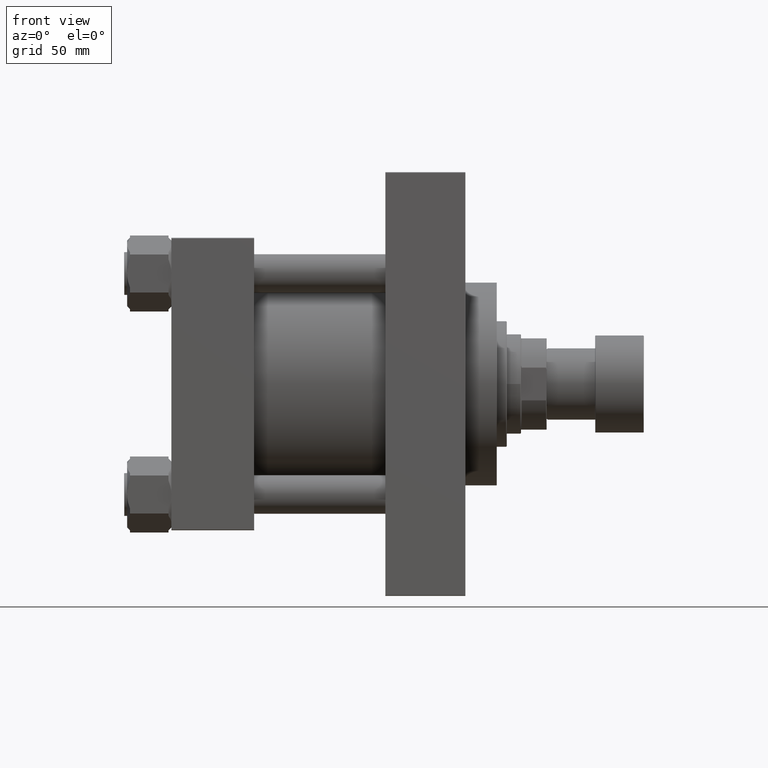
[diagram: clean part render]
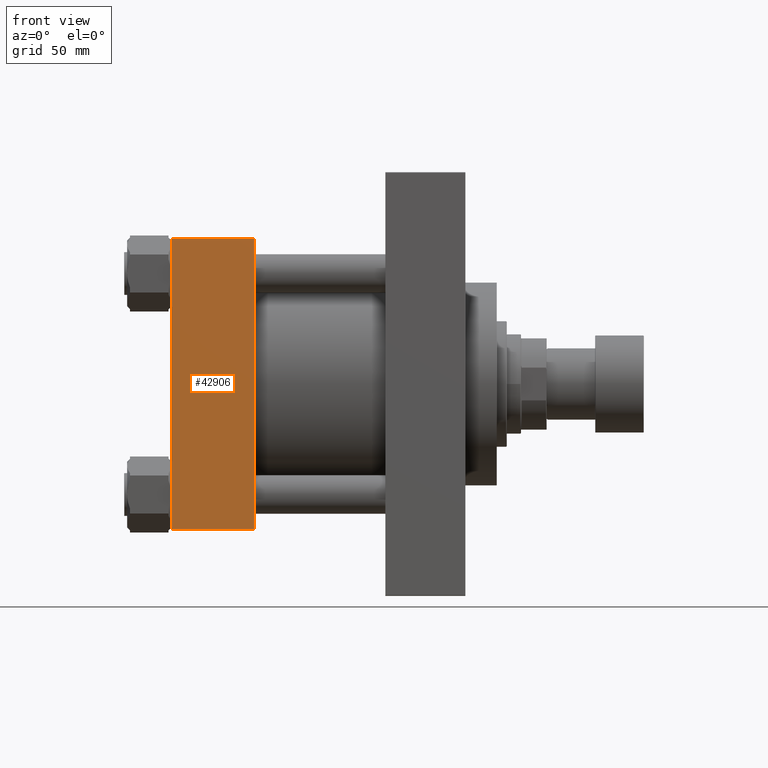
[diagram: same view with one face highlighted and labeled with its STEP entity id]
A machine part, front view. The second image highlights one B-rep face of the part: STEP entity #42906.
In plain terms, the highlighted planar face has unit normal (0, 1, 0).
Its self-contained STEP definition (entity closure, byte-faithful):
#3365 = CARTESIAN_POINT ( 'NONE',  ( 58.00000000000000000, -102.4999999999999858, -101.9999999999999005 ) ) ;
#4756 = DIRECTION ( 'NONE',  ( -0.000000000000000000, 1.000000000000000000, 0.000000000000000000 ) ) ;
#4812 = VERTEX_POINT ( 'NONE', #27181 ) ;
#6984 = EDGE_LOOP ( 'NONE', ( #40139, #20912, #31416, #22101 ) ) ;
#7749 = LINE ( 'NONE', #3365, #36127 ) ;
#8902 = DIRECTION ( 'NONE',  ( 0.000000000000000000, -0.000000000000000000, 1.000000000000000000 ) ) ;
#10042 = LINE ( 'NONE', #11009, #30415 ) ;
#10719 = EDGE_CURVE ( 'NONE', #40526, #4812, #7749, .T. ) ;
#11009 = CARTESIAN_POINT ( 'NONE',  ( 0.000000000000000000, -102.4999999999999858, 102.4999999999999858 ) ) ;
#12483 = VECTOR ( 'NONE', #17551, 1000.000000000000000 ) ;
#12796 = CARTESIAN_POINT ( 'NONE',  ( 58.00000000000000000, -102.4999999999999858, 102.4999999999999858 ) ) ;
#13660 = CARTESIAN_POINT ( 'NONE',  ( 58.00000000000000000, -102.4999999999999858, 102.4999999999999858 ) ) ;
#14574 = DIRECTION ( 'NONE',  ( 1.000000000000000000, 0.000000000000000000, 0.000000000000000000 ) ) ;
#14630 = LINE ( 'NONE', #13660, #12483 ) ;
#17171 = VERTEX_POINT ( 'NONE', #35367 ) ;
#17237 = EDGE_CURVE ( 'NONE', #45341, #40526, #10042, .T. ) ;
#17551 = DIRECTION ( 'NONE',  ( 0.000000000000000000, 0.000000000000000000, -1.000000000000000000 ) ) ;
#18290 = DIRECTION ( 'NONE',  ( 0.000000000000000000, 0.000000000000000000, -1.000000000000000000 ) ) ;
#20912 = ORIENTED_EDGE ( 'NONE', *, *, #10719, .T. ) ;
#22101 = ORIENTED_EDGE ( 'NONE', *, *, #47047, .T. ) ;
#24459 = LINE ( 'NONE', #32009, #47622 ) ;
#27181 = CARTESIAN_POINT ( 'NONE',  ( 58.00000000000000000, -102.4999999999999858, -101.9999999999999005 ) ) ;
#30415 = VECTOR ( 'NONE', #18290, 1000.000000000000000 ) ;
#31018 = FACE_OUTER_BOUND ( 'NONE', #6984, .T. ) ;
#31416 = ORIENTED_EDGE ( 'NONE', *, *, #41174, .F. ) ;
#32009 = CARTESIAN_POINT ( 'NONE',  ( 58.00000000000000000, -102.4999999999999858, 101.9999999999999574 ) ) ;
#33565 = CARTESIAN_POINT ( 'NONE',  ( 0.000000000000000000, -102.4999999999999858, 101.9999999999999574 ) ) ;
#35367 = CARTESIAN_POINT ( 'NONE',  ( 58.00000000000000000, -102.4999999999999858, 101.9999999999999574 ) ) ;
#36127 = VECTOR ( 'NONE', #14574, 1000.000000000000000 ) ;
#40139 = ORIENTED_EDGE ( 'NONE', *, *, #17237, .T. ) ;
#40526 = VERTEX_POINT ( 'NONE', #44234 ) ;
#41174 = EDGE_CURVE ( 'NONE', #17171, #4812, #14630, .T. ) ;
#41993 = PLANE ( 'NONE',  #42037 ) ;
#42037 = AXIS2_PLACEMENT_3D ( 'NONE', #12796, #4756, #8902 ) ;
#42906 = ADVANCED_FACE ( 'NONE', ( #31018 ), #41993, .F. ) ;
#44234 = CARTESIAN_POINT ( 'NONE',  ( 0.000000000000000000, -102.4999999999999858, -101.9999999999999005 ) ) ;
#45341 = VERTEX_POINT ( 'NONE', #33565 ) ;
#46868 = DIRECTION ( 'NONE',  ( -1.000000000000000000, 0.000000000000000000, 0.000000000000000000 ) ) ;
#47047 = EDGE_CURVE ( 'NONE', #17171, #45341, #24459, .T. ) ;
#47622 = VECTOR ( 'NONE', #46868, 1000.000000000000000 ) ;